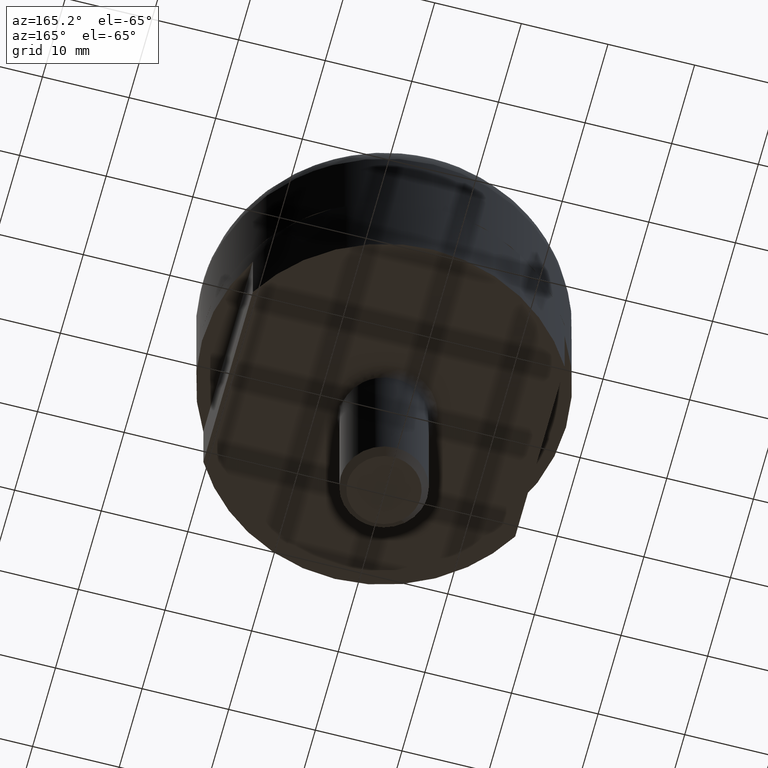
[diagram: clean part render]
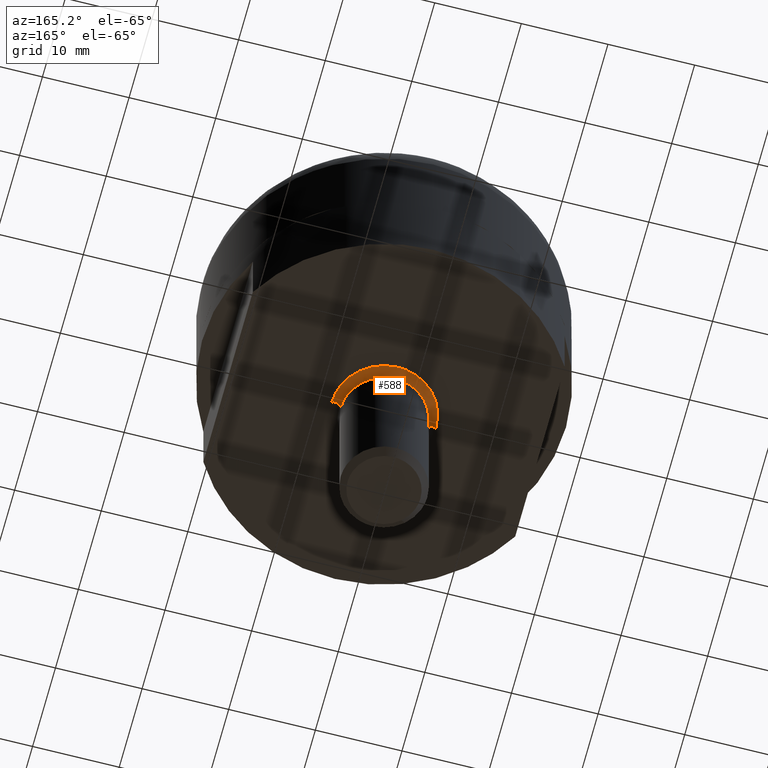
[diagram: same view with one face highlighted and labeled with its STEP entity id]
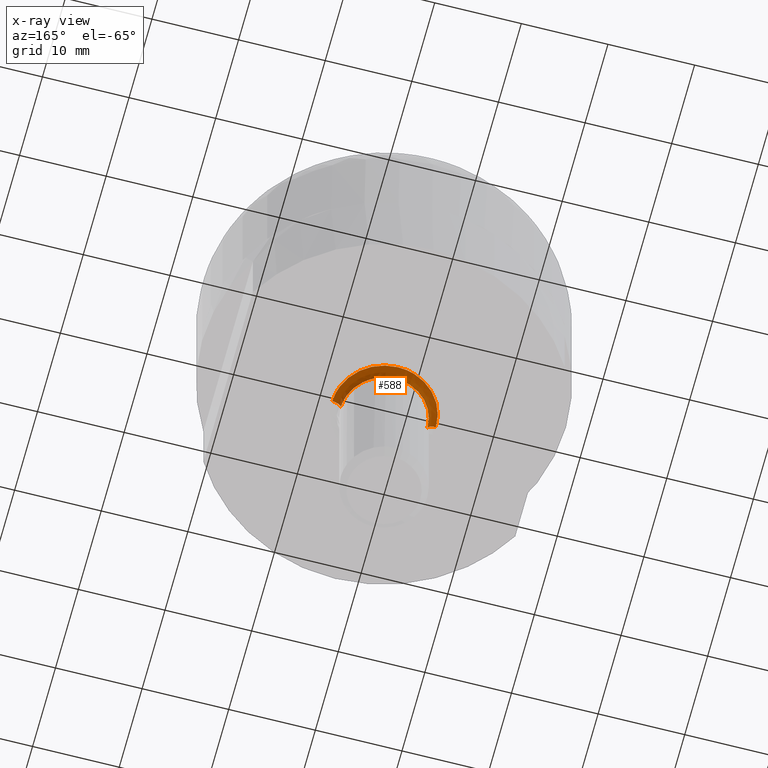
[diagram: x-ray of the same camera — body ghosted, the highlighted face saturated]
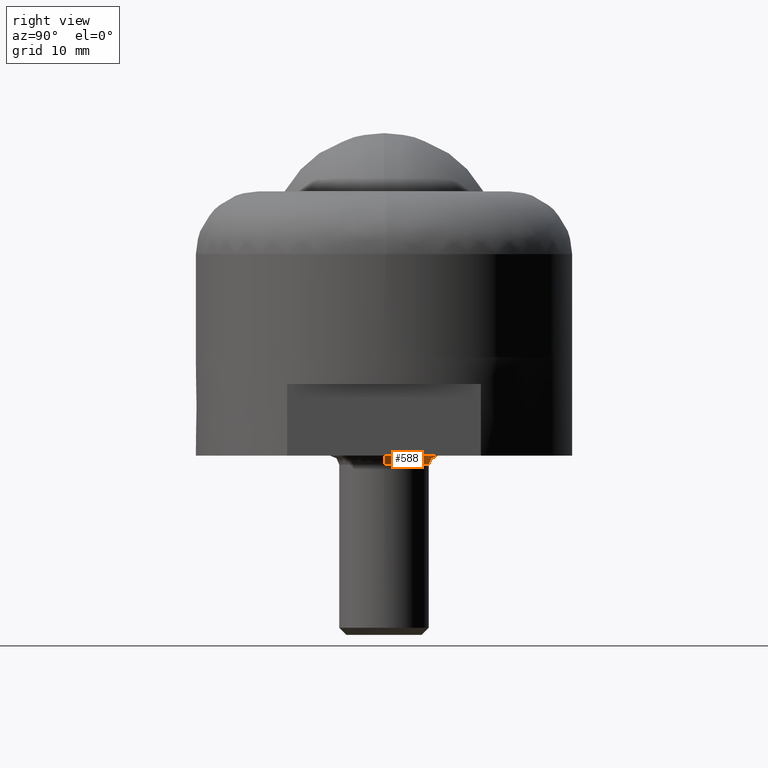
[diagram: same view with one face highlighted and labeled with its STEP entity id]
A machine part, auxiliary view. The second image highlights one B-rep face of the part: STEP entity #588.
The next image is the same camera in x-ray: the body ghosted, the highlighted face saturated — about 0% of this face is hidden behind the body in this view.
A second angle (right view) of the same face is appended — the face is thin or edge-on in the first view.
In plain terms, the highlighted face is a freeform B-spline surface patch.
Its self-contained STEP definition (entity closure, byte-faithful):
#269=CARTESIAN_POINT('',(3.395925691567559,3.669834968680770,-11.999999999773690));
#270=VERTEX_POINT('',#269);
#271=CARTESIAN_POINT('',(4.999605221019069,0.062830199424094,-11.999999999731470));
#272=VERTEX_POINT('',#271);
#273=CARTESIAN_POINT('',(3.395925691567559,3.669834968680770,-11.999999999773690));
#274=CARTESIAN_POINT('',(3.597595779935376,3.483238617572249,-11.999999999768299));
#275=CARTESIAN_POINT('',(3.984398789285261,3.061056353711980,-11.999999999758060));
#276=CARTESIAN_POINT('',(4.431322667037016,2.364616304570696,-11.999999999746160));
#277=CARTESIAN_POINT('',(4.765912345203577,1.585577557252613,-11.999999999737410));
#278=CARTESIAN_POINT('',(4.953149267940124,0.823165795814866,-11.999999999732511));
#279=CARTESIAN_POINT('',(4.996690199412904,0.295294524354585,-11.999999999731530));
#280=CARTESIAN_POINT('',(4.999605221019069,0.062830199424094,-11.999999999731470));
#281=B_SPLINE_CURVE_WITH_KNOTS('',3,(#273,#274,#275,#276,#277,#278,#279,#280),.UNSPECIFIED.,.F.,.U.,(4,1,1,1,1,4),(8.616221E-009,0.824262871448584,1.711942536258702,2.472787202593598,3.360463419259411,4.057917728803267),.UNSPECIFIED.);
#282=EDGE_CURVE('',#270,#272,#281,.T.);
#355=CARTESIAN_POINT('',(-0.031380024919610,4.999901528434020,-11.999999999865731));
#356=VERTEX_POINT('',#355);
#357=CARTESIAN_POINT('',(-0.031380024919610,4.999901528434020,-11.999999999865731));
#358=CARTESIAN_POINT('',(0.380382102875268,5.002604034246816,-11.999999999854611));
#359=CARTESIAN_POINT('',(1.067104875747565,4.921510199361673,-11.999999999836190));
#360=CARTESIAN_POINT('',(1.869299460301926,4.652859325633130,-11.999999999814619));
#361=CARTESIAN_POINT('',(2.628406930394046,4.283807908097058,-11.999999999794250));
#362=CARTESIAN_POINT('',(3.093775904552139,3.949589903255509,-11.999999999781780));
#363=CARTESIAN_POINT('',(3.395925691567559,3.669834968680770,-11.999999999773690));
#364=B_SPLINE_CURVE_WITH_KNOTS('',3,(#357,#358,#359,#360,#361,#362,#363),.UNSPECIFIED.,.F.,.U.,(4,1,1,1,4),(9.698917E-009,1.235282342326669,2.058789861291659,2.529378846340898,3.764661178968675),.UNSPECIFIED.);
#365=EDGE_CURVE('',#356,#270,#364,.T.);
#373=CARTESIAN_POINT('',(-4.999605221019068,-0.062830199424093,-11.999999999731470));
#374=VERTEX_POINT('',#373);
#385=CARTESIAN_POINT('',(-5.000000000000080,0.0,-12.0));
#386=VERTEX_POINT('',#385);
#387=CARTESIAN_POINT('',(-4.999605221019068,-0.062830199424093,-11.999999999731470));
#388=CARTESIAN_POINT('',(-5.000000000000080,0.0,-12.0));
#389=QUASI_UNIFORM_CURVE('',1,(#387,#388),.UNSPECIFIED.,.F.,.U.);
#390=EDGE_CURVE('',#374,#386,#389,.T.);
#392=CARTESIAN_POINT('',(-5.000000000000080,0.0,-12.0));
#393=CARTESIAN_POINT('',(-5.000055127076395,0.346316007282285,-11.999999999999959));
#394=CARTESIAN_POINT('',(-4.929866871705744,1.018547982283766,-11.999999999997950));
#395=CARTESIAN_POINT('',(-4.615881201966528,2.014129859987905,-11.999999999989351));
#396=CARTESIAN_POINT('',(-4.112615202157358,2.906791808499408,-11.999999999975699));
#397=CARTESIAN_POINT('',(-3.517937337554986,3.583162530286708,-11.999999999959581));
#398=CARTESIAN_POINT('',(-2.857241908877568,4.129303459120771,-11.999999999941750));
#399=CARTESIAN_POINT('',(-2.063401623491646,4.596501084474231,-11.999999999920570));
#400=CARTESIAN_POINT('',(-1.069857303308954,4.923473291862587,-11.999999999893300));
#401=CARTESIAN_POINT('',(-0.357310883484380,4.997880020280590,-11.999999999874751));
#402=CARTESIAN_POINT('',(-0.031380024919610,4.999901528434020,-11.999999999865731));
#403=B_SPLINE_CURVE_WITH_KNOTS('',3,(#392,#393,#394,#395,#396,#397,#398,#399,#400,#401,#402),.UNSPECIFIED.,.F.,.U.,(4,1,1,1,1,1,1,1,4),(0.000000022298023,1.038942317525869,2.016777718355038,3.116851857219460,4.094650636548173,4.705799249875053,5.683642894614501,6.844830307079911,7.822650095138013),.UNSPECIFIED.);
#404=EDGE_CURVE('',#386,#356,#403,.T.);
#439=CARTESIAN_POINT('',(5.999526265152366,0.075396239348814,-11.0));
#440=VERTEX_POINT('',#439);
#441=CARTESIAN_POINT('',(4.999605221019069,0.062830199424094,-11.999999999731470));
#442=CARTESIAN_POINT('',(4.999476287056453,0.062828579109607,-11.869088252831620));
#443=CARTESIAN_POINT('',(5.046858495320702,0.063424032848952,-11.631908556477560));
#444=CARTESIAN_POINT('',(5.212045744079005,0.065499946319623,-11.363877971960680));
#445=CARTESIAN_POINT('',(5.399018938253017,0.067849644464638,-11.190242855533430));
#446=CARTESIAN_POINT('',(5.647882300824493,0.070977118344731,-11.045110740488520));
#447=CARTESIAN_POINT('',(5.860421556036171,0.073648105997902,-10.999828211965481));
#448=CARTESIAN_POINT('',(5.999526265152366,0.075396239348814,-11.0));
#449=B_SPLINE_CURVE_WITH_KNOTS('',3,(#441,#442,#443,#444,#445,#446,#447,#448),.UNSPECIFIED.,.F.,.U.,(4,1,1,1,1,4),(0.000000086233015,0.392709241924607,0.711802555847905,0.932680309467527,1.153581823606608,1.570835744149389),.UNSPECIFIED.);
#450=EDGE_CURVE('',#272,#440,#449,.T.);
#476=CARTESIAN_POINT('',(-5.999526265152366,-0.075396239348812,-11.0));
#477=VERTEX_POINT('',#476);
#494=CARTESIAN_POINT('',(-4.999605221019068,-0.062830199424093,-11.999999999731470));
#495=CARTESIAN_POINT('',(-4.999477675266485,-0.062828596555287,-11.869076476073060));
#496=CARTESIAN_POINT('',(-5.038714260385459,-0.063321683985863,-11.672835627212780));
#497=CARTESIAN_POINT('',(-5.166645603844610,-0.064929401296458,-11.433600517273650));
#498=CARTESIAN_POINT('',(-5.320290163712726,-0.066860257423009,-11.250922807448021));
#499=CARTESIAN_POINT('',(-5.516351043646279,-0.069324160806332,-11.112825954889480));
#500=CARTESIAN_POINT('',(-5.754123257933019,-0.072312251868281,-11.021135237491849));
#501=CARTESIAN_POINT('',(-5.909537512587297,-0.074265347802683,-10.999969955972620));
#502=CARTESIAN_POINT('',(-5.999526265152366,-0.075396239348812,-11.0));
#503=B_SPLINE_CURVE_WITH_KNOTS('',3,(#494,#495,#496,#497,#498,#499,#500,#501,#502),.UNSPECIFIED.,.F.,.U.,(4,1,1,1,1,1,4),(0.000000086233754,0.392709241925242,0.589073831163920,0.809950600669598,1.104489589701264,1.300848941045084,1.570835744149393),.UNSPECIFIED.);
#504=EDGE_CURVE('',#374,#477,#503,.T.);
#512=CARTESIAN_POINT('',(-5.000268286616756,-0.202700936674918,-12.069537109113243));
#513=CARTESIAN_POINT('',(-5.001141858246078,-0.133187974445974,-12.069537109113245));
#514=CARTESIAN_POINT('',(-5.064886281610188,4.939165047197127,-12.069537109113247));
#515=CARTESIAN_POINT('',(-0.062860617206530,5.002025664403660,-12.069537109113247));
#516=CARTESIAN_POINT('',(4.939165047197127,5.064886281610188,-12.069537109113247));
#517=CARTESIAN_POINT('',(5.002909470560938,-0.007466740008864,-12.069537109113249));
#518=CARTESIAN_POINT('',(5.003783042189964,-0.076979702214314,-12.069537109113247));
#519=CARTESIAN_POINT('',(-4.920344911208487,-0.199461001909650,-10.922462825982244));
#520=CARTESIAN_POINT('',(-4.921204519828374,-0.131059122178186,-10.922462825982246));
#521=CARTESIAN_POINT('',(-4.983930063967071,4.860218334812294,-10.922462825982247));
#522=CARTESIAN_POINT('',(-0.061855864577389,4.922074199389685,-10.922462825982246));
#523=CARTESIAN_POINT('',(4.860218334812294,4.983930063967071,-10.922462825982247));
#524=CARTESIAN_POINT('',(4.922943878950699,-0.007347392999744,-10.922462825982246));
#525=CARTESIAN_POINT('',(4.923803487570293,-0.075749272708089,-10.922462825982244));
#526=CARTESIAN_POINT('',(-6.066925650440010,-0.245941105874812,-11.002420636468241));
#527=CARTESIAN_POINT('',(-6.067985572392522,-0.161599636695326,-11.002420636468235));
#528=CARTESIAN_POINT('',(-6.145327957843182,5.992787866363079,-11.002420636468237));
#529=CARTESIAN_POINT('',(-0.076270045740052,6.069057912103133,-11.002420636468241));
#530=CARTESIAN_POINT('',(5.992787866363079,6.145327957843182,-11.002420636468237));
#531=CARTESIAN_POINT('',(6.070130251813374,-0.009059545186043,-11.002420636468241));
#532=CARTESIAN_POINT('',(6.071190173765528,-0.093401014337023,-11.002420636468239));
#540=(BOUNDED_SURFACE()B_SPLINE_SURFACE(2,2,((#512,#519,#526),(#513,#520,#527),(#514,#521,#528),(#515,#522,#529),(#516,#523,#530),(#517,#524,#531),(#518,#525,#532)),.UNSPECIFIED.,.F.,.F.,.U.)B_SPLINE_SURFACE_WITH_KNOTS((3,1,2,1,3),(3,3),(0.0,0.201126768025008,10.257465166313370,20.313803564601731,20.514930332557551),(0.0,1.822729993277951),.UNSPECIFIED.)GEOMETRIC_REPRESENTATION_ITEM()RATIONAL_B_SPLINE_SURFACE(((0.921146729408091,0.604479481454497,0.921146741240725),(0.915813262249544,0.600979527148167,0.915813274013666),(0.643806437242182,0.422481857576905,0.643806445512228),(0.910479795090997,0.597479572841838,0.910479806786608),(0.643806437242182,0.422481857576905,0.643806445512228),(0.915813262247709,0.600979527146963,0.915813274011832),(0.921146729404422,0.604479481452089,0.921146741237056)))REPRESENTATION_ITEM('')SURFACE());
#541=ORIENTED_EDGE('',*,*,#404,.F.);
#542=ORIENTED_EDGE('',*,*,#390,.F.);
#543=ORIENTED_EDGE('',*,*,#504,.T.);
#544=CARTESIAN_POINT('',(-6.000000000000080,0.0,-11.0));
#545=VERTEX_POINT('',#544);
#546=CARTESIAN_POINT('',(-5.999526265152366,-0.075396239348812,-11.0));
#547=CARTESIAN_POINT('',(-6.000000000000080,0.0,-11.0));
#548=QUASI_UNIFORM_CURVE('',1,(#546,#547),.UNSPECIFIED.,.F.,.U.);
#549=EDGE_CURVE('',#477,#545,#548,.T.);
#550=ORIENTED_EDGE('',*,*,#549,.T.);
#551=CARTESIAN_POINT('',(-0.037663752118447,5.999881785650004,-11.0));
#552=VERTEX_POINT('',#551);
#553=CARTESIAN_POINT('',(-6.000000000000080,0.0,-11.0));
#554=CARTESIAN_POINT('',(-6.000012109130747,0.293342442039922,-11.0));
#555=CARTESIAN_POINT('',(-5.955105093419184,0.904481172040774,-10.999999999999989));
#556=CARTESIAN_POINT('',(-5.751680256836394,1.788729071553806,-11.000000000000020));
#557=CARTESIAN_POINT('',(-5.379944482297447,2.722427425356172,-10.999999999999980));
#558=CARTESIAN_POINT('',(-4.776585560126764,3.706666663442168,-10.999999999999970));
#559=CARTESIAN_POINT('',(-3.942342753023974,4.577463175390253,-11.000000000000091));
#560=CARTESIAN_POINT('',(-2.973783768505164,5.247446798435667,-10.999999999999901));
#561=CARTESIAN_POINT('',(-2.125068735489750,5.634584215108023,-11.000000000000091));
#562=CARTESIAN_POINT('',(-1.137201521942369,5.920031480682612,-10.999999999999901));
#563=CARTESIAN_POINT('',(-0.477681454565862,5.997201835088323,-11.000000000000149));
#564=CARTESIAN_POINT('',(-0.037663752118447,5.999881785650004,-11.0));
#565=B_SPLINE_CURVE_WITH_KNOTS('',3,(#553,#554,#555,#556,#557,#558,#559,#560,#561,#562,#563,#564),.UNSPECIFIED.,.F.,.U.,(4,1,1,1,1,1,1,1,1,4),(6.407102E-009,0.880032497082802,1.833432283637209,2.713483348738199,3.886882227014917,5.280277004568635,6.306999109008338,7.407068215096590,8.067111556403521,9.387172391668498),.UNSPECIFIED.);
#566=EDGE_CURVE('',#545,#552,#565,.T.);
#567=ORIENTED_EDGE('',*,*,#566,.T.);
#568=CARTESIAN_POINT('',(-0.037663752118447,5.999881785650004,-11.0));
#569=CARTESIAN_POINT('',(0.475696048792808,6.003257217239082,-11.000000000000020));
#570=CARTESIAN_POINT('',(1.282950006730200,5.903978500692916,-10.999999999999940));
#571=CARTESIAN_POINT('',(2.282178726932398,5.568643878328944,-11.000000000000069));
#572=CARTESIAN_POINT('',(3.028986943794637,5.200318991116300,-10.999999999999940));
#573=CARTESIAN_POINT('',(3.821947969900943,4.666427987026236,-11.000000000000011));
#574=CARTESIAN_POINT('',(4.545461689646060,3.965053622492007,-11.000000000000110));
#575=CARTESIAN_POINT('',(5.089399905226880,3.208948468646000,-10.999999999999870));
#576=CARTESIAN_POINT('',(5.531705768030837,2.390469237125218,-11.000000000000130));
#577=CARTESIAN_POINT('',(5.888712133929938,1.369684224473510,-11.000000000000041));
#578=CARTESIAN_POINT('',(5.994073753267172,0.515383062139136,-10.999999999999959));
#579=CARTESIAN_POINT('',(5.999526265152366,0.075396239348814,-11.0));
#580=B_SPLINE_CURVE_WITH_KNOTS('',3,(#568,#569,#570,#571,#572,#573,#574,#575,#576,#577,#578,#579),.UNSPECIFIED.,.F.,.U.,(4,1,1,1,1,1,1,1,1,4),(6.409087E-009,1.540068000268740,2.420113038347659,3.153487508901965,4.033525121998034,5.280237502414078,6.160276765818366,6.820315450367030,8.067051205570779,9.387102165503363),.UNSPECIFIED.);
#581=EDGE_CURVE('',#552,#440,#580,.T.);
#582=ORIENTED_EDGE('',*,*,#581,.T.);
#583=ORIENTED_EDGE('',*,*,#450,.F.);
#584=ORIENTED_EDGE('',*,*,#282,.F.);
#585=ORIENTED_EDGE('',*,*,#365,.F.);
#586=EDGE_LOOP('',(#541,#542,#543,#550,#567,#582,#583,#584,#585));
#587=FACE_OUTER_BOUND('',#586,.T.);
#588=ADVANCED_FACE('',(#587),#540,.F.);